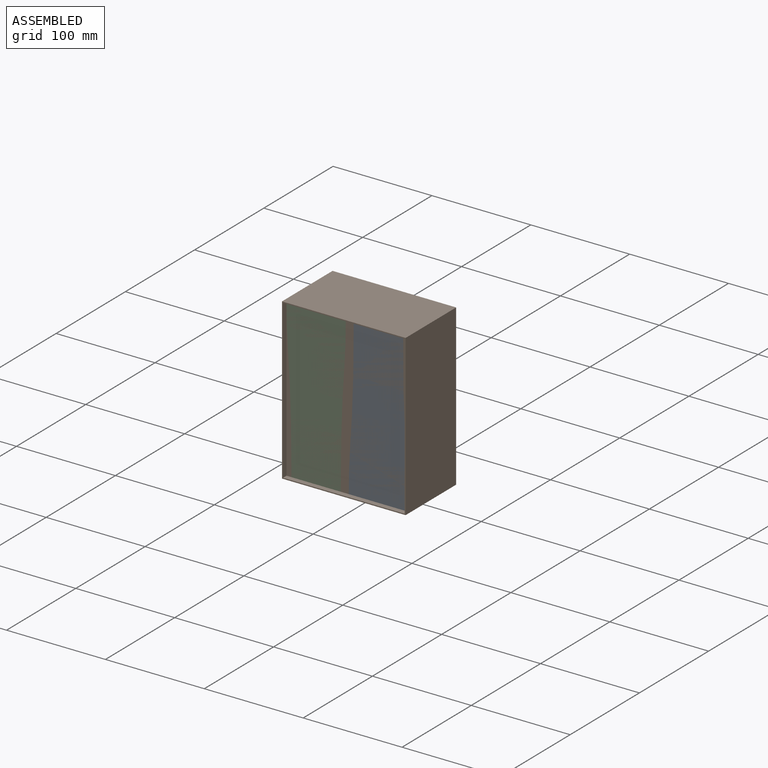
[diagram: assembled view]
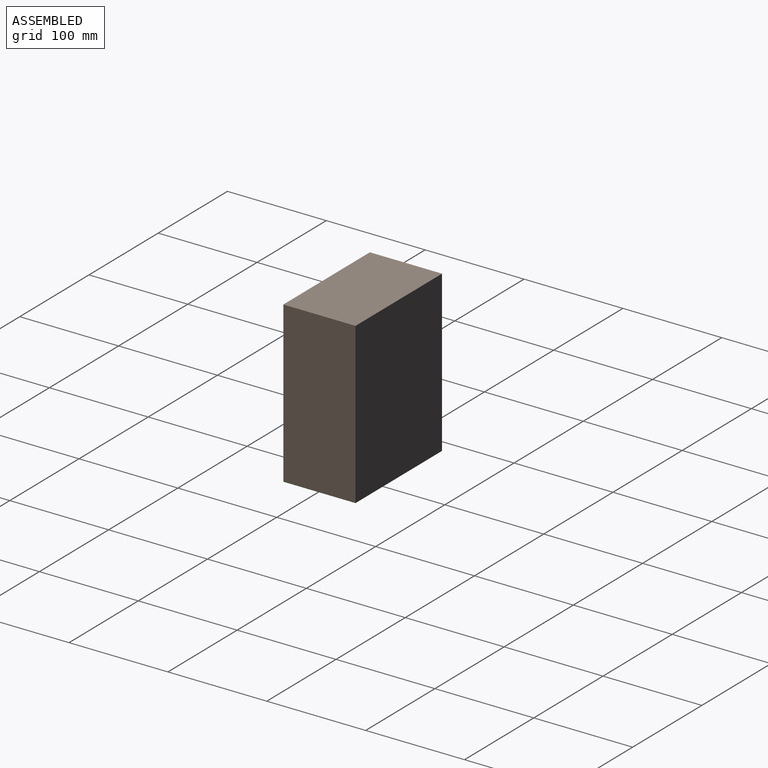
[diagram: assembled view, second angle]
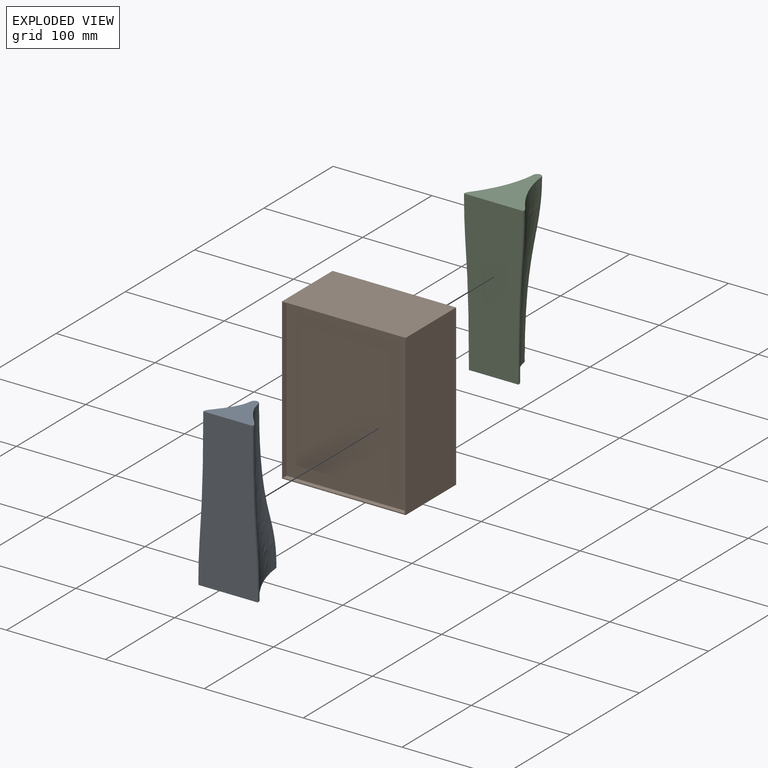
[diagram: exploded view]
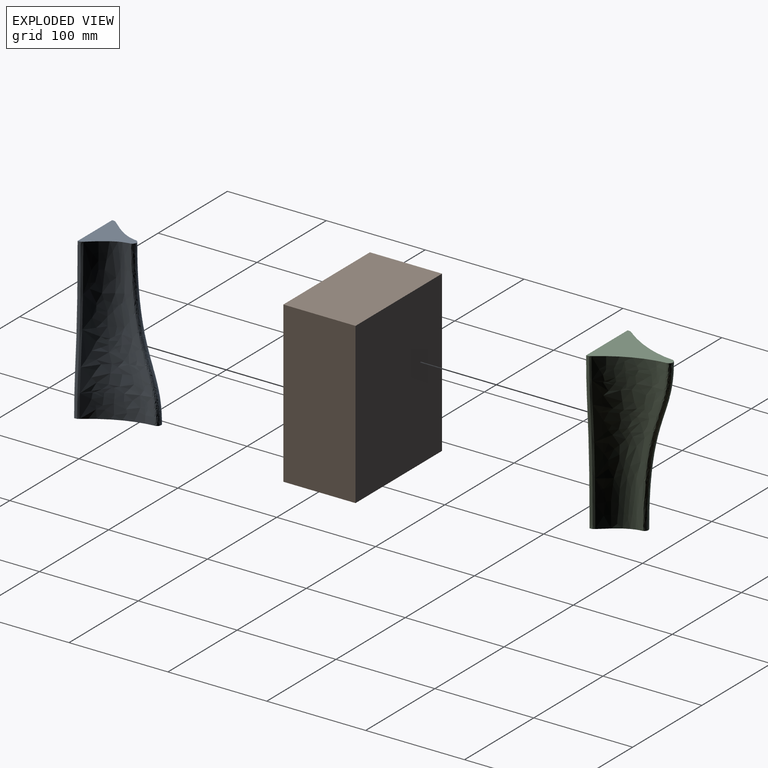
[diagram: exploded view, second angle]
ASSEMBLY  parts=3 mates=4
PART A: 10 faces, bbox 60x67x200.6 mm
  f0: plane 50.02x42.02mm, normal (0,0,1), area 1027.9mm2, adj f2,f3,f4,f5,f6,f7,f8,f9
  f1: plane 67.01x60.01mm, normal (0,0,-1), area 1820.2mm2, adj f2,f3,f4,f5,f6,f7,f8,f9
  f2: bspline ~160x60mm, area 7877.7mm2, adj f0,f1,f3,f9
  f3: bspline ~160x29mm, area 2028.4mm2, adj f0,f1,f2,f4
  f4: bspline ~160x60mm, area 7877.7mm2, adj f0,f1,f3,f8
  f5: bspline ~160x5mm, area 127.2mm2, adj f0,f1,f6,f8
  f6: plane 160x60mm, normal (0,-1,0), area 8640mm2, adj f0,f1,f5,f7
  f7: bspline ~160x5mm, area 127.2mm2, adj f0,f1,f6,f9
  f8: bspline ~200.58x6.51mm, area 671.5mm2, adj f0,f1,f4,f5
  f9: bspline ~200.58x6.51mm, area 671.5mm2, adj f0,f1,f2,f7
PART B: 11 faces, bbox 125x162x73 mm
  f0: plane 125x73mm, normal (0,-1,0), area 9125mm2, adj f1,f7,f8,f10
  f1: plane 162x73mm, normal (1,0,0), area 11826mm2, adj f0,f2,f8,f10
  f2: plane 125x73mm, normal (0,1,0), area 9125mm2, adj f1,f7,f8,f10
  f3: plane 160x5mm, normal (-1,0,0), area 800mm2, adj f4,f6,f8,f9
  f4: plane 123x5mm, normal (0,1,0), area 615mm2, adj f3,f5,f8,f9
  f5: plane 160x5mm, normal (1,0,0), area 800mm2, adj f4,f6,f8,f9
  f6: plane 123x5mm, normal (0,-1,0), area 615mm2, adj f3,f5,f8,f9
  f7: plane 162x73mm, normal (-1,0,0), area 11826mm2, adj f0,f2,f8,f10
  f8: plane 162x125mm, normal (0,0,1), area 570mm2, adj f0,f1,f2,f3,f4,f5,f6,f7
  f9: plane 160x123mm, normal (0,0,1), area 19680mm2, adj f3,f4,f5,f6
  f10: plane 162x125mm, normal (0,0,-1), area 20250mm2, adj f0,f1,f2,f7
PART C: same geometry as A
PLACE A rot(axis=(-1,0,0),0deg) t=(14.54,76.58,-71.93)mm
PLACE B rot(axis=(0,-0.71,0.71),180deg) t=(-16.96,73.58,8.07)mm
PLACE C rot(axis=(0,-1,0),180deg) t=(-48.46,76.58,88.07)mm
MATE planar A.f6 <-> B.f9  axis (0,-1,0) through (14.54,73.58,5.07)mm
MATE planar A.f0 <-> B.f4  axis (0,0,1) through (-4.46,74.29,88.07)mm
MATE planar C.f6 <-> B.f9  axis (0,-1,0) through (-48.46,73.58,11.07)mm
MATE planar C.f1 <-> B.f4  axis (0,0,1) through (-48.46,95.38,88.07)mm
